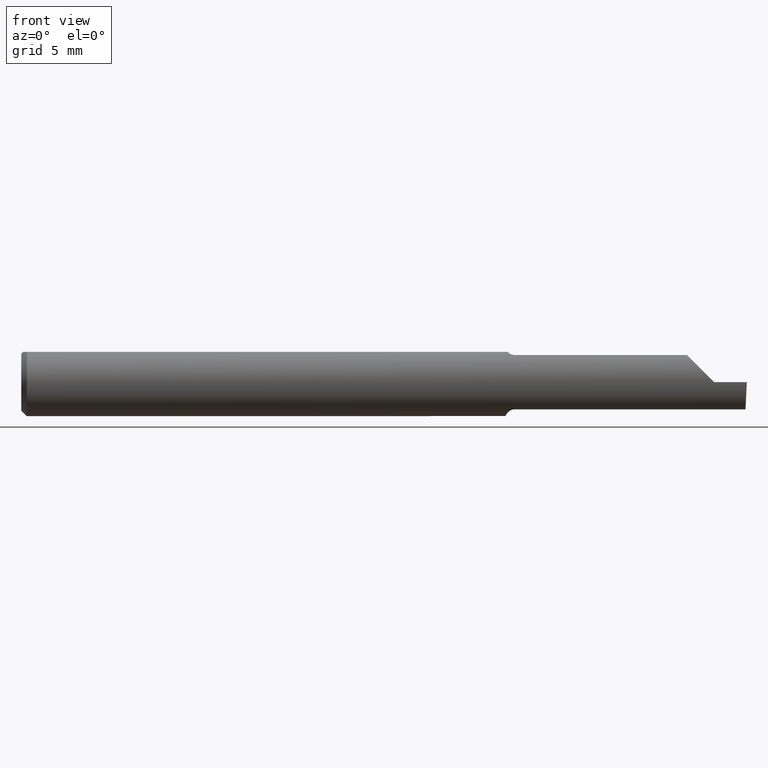
[diagram: clean part render]
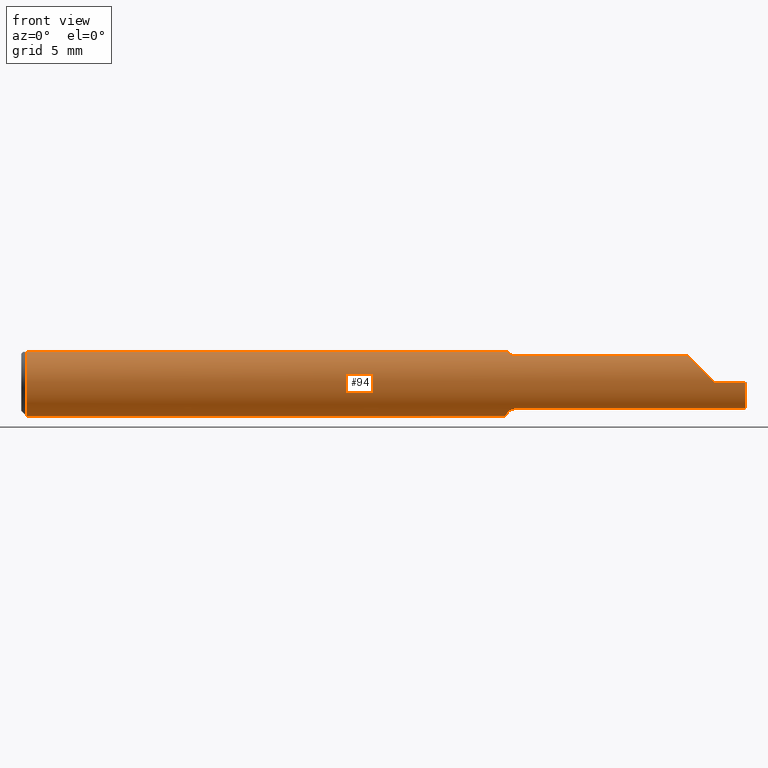
[diagram: same view with one face highlighted and labeled with its STEP entity id]
A machine part, front view. The second image highlights one B-rep face of the part: STEP entity #94.
In plain terms, the highlighted cylindrical surface (edge-blend (fillet) strip) has radius 2.3774 mm, axis along (-1, -0, -0).
Its self-contained STEP definition (entity closure, byte-faithful):
#3 = VERTEX_POINT ( 'NONE', #550 ) ;
#4 = VECTOR ( 'NONE', #466, 39.37007874015748143 ) ;
#7 = EDGE_CURVE ( 'NONE', #507, #112, #250, .T. ) ;
#26 = EDGE_CURVE ( 'NONE', #243, #507, #665, .T. ) ;
#27 = VERTEX_POINT ( 'NONE', #77 ) ;
#30 = CARTESIAN_POINT ( 'NONE',  ( 1.995561922431088098, -0.08091355869144019330, -0.05531953381055033925 ) ) ;
#33 = CARTESIAN_POINT ( 'NONE',  ( 0.01499999999999999944, -0.04209513035969836975, 0.08359999999999999376 ) ) ;
#34 = CARTESIAN_POINT ( 'NONE',  ( 1.996026586675631709, -0.09358669535931163352, -0.02913391928411206838 ) ) ;
#36 = CARTESIAN_POINT ( 'NONE',  ( 1.854690286057537829, -0.08092595952420826577, 0.05530971394246238237 ) ) ;
#45 = CARTESIAN_POINT ( 'NONE',  ( 1.355389214148234434, -0.05750155061631038317, 0.07386444488392700236 ) ) ;
#47 = CARTESIAN_POINT ( 'NONE',  ( 1.334999999999999520, -0.01308640439514264717, -0.09289765197734373148 ) ) ;
#48 =( BOUNDED_CURVE ( )  B_SPLINE_CURVE ( 3, ( #398, #626, #36, #683 ),
 .UNSPECIFIED., .F., .F. ) 
 B_SPLINE_CURVE_WITH_KNOTS ( ( 4, 4 ),
 ( 4.712388980384689674, 5.613420356061718408 ),
 .UNSPECIFIED. ) 
 CURVE ( )  GEOMETRIC_REPRESENTATION_ITEM ( )  RATIONAL_B_SPLINE_CURVE ( ( 1.000000000000000000, 0.9334817841311876530, 0.9334817841311876530, 1.000000000000000000 ) ) 
 REPRESENTATION_ITEM ( '' )  );
#49 = ORIENTED_EDGE ( 'NONE', *, *, #304, .F. ) ;
#51 = CARTESIAN_POINT ( 'NONE',  ( 1.338953896433695112, -0.03733827064844358334, -0.08603332211978831356 ) ) ;
#58 = B_SPLINE_CURVE_WITH_KNOTS ( 'NONE', 3,
 ( #390, #280, #449, #679, #148, #99, #684, #573 ),
 .UNSPECIFIED., .F., .F.,
 ( 4, 2, 2, 4 ),
 ( 1.968126669309311202E-07, 0.0001761966947278606531, 0.0003521965767887903819, 0.0007041963409106363411 ),
 .UNSPECIFIED. ) ;
#61 = CARTESIAN_POINT ( 'NONE',  ( 1.341356684838558300, -0.04259999999999997816, 0.08334386600104415344 ) ) ;
#69 = VECTOR ( 'NONE', #111, 39.37007874015748143 ) ;
#70 = CARTESIAN_POINT ( 'NONE',  ( 0.000000000000000000, 0.000000000000000000, 0.000000000000000000 ) ) ;
#72 = VECTOR ( 'NONE', #661, 39.37007874015748854 ) ;
#77 = CARTESIAN_POINT ( 'NONE',  ( 1.341356684838558300, -0.04259999999999997122, -0.08334386600104412568 ) ) ;
#81 = CYLINDRICAL_SURFACE ( 'NONE', #445, 0.09359999999999998876 ) ;
#94 = ADVANCED_FACE ( 'NONE', ( #380 ), #81, .T. ) ;
#99 = CARTESIAN_POINT ( 'NONE',  ( 1.345264545693809044, -0.04993027844100267343, -0.07924826417278510449 ) ) ;
#107 = CARTESIAN_POINT ( 'NONE',  ( 1.357655343791670077, -0.05810704225352126412, 0.07337936794867815082 ) ) ;
#111 = DIRECTION ( 'NONE',  ( -1.000000000000000000, -0.000000000000000000, -0.000000000000000000 ) ) ;
#112 = VERTEX_POINT ( 'NONE', #553 ) ;
#115 = CARTESIAN_POINT ( 'NONE',  ( 1.337415450430337494, -0.03151229630690470518, -0.08835846806355296401 ) ) ;
#122 = EDGE_LOOP ( 'NONE', ( #207, #535, #666, #427, #175, #734, #459, #475, #294, #395, #778, #255, #171, #551, #49 ) ) ;
#126 = CARTESIAN_POINT ( 'NONE',  ( 1.334999999999999742, -0.006757276995305157297, -0.09335576686851604356 ) ) ;
#141 = EDGE_CURVE ( 'NONE', #599, #574, #752, .T. ) ;
#148 = CARTESIAN_POINT ( 'NONE',  ( 1.349728336617689317, -0.05428341532129051655, -0.07627162539867091140 ) ) ;
#150 = CARTESIAN_POINT ( 'NONE',  ( 1.343098441794897902, -0.04641417426599061397, 0.08139430652501544738 ) ) ;
#160 = CARTESIAN_POINT ( 'NONE',  ( 1.359999999999999654, -0.05810704225352114616, 0.07337936794867824797 ) ) ;
#161 = EDGE_CURVE ( 'NONE', #240, #243, #652, .T. ) ;
#167 = CARTESIAN_POINT ( 'NONE',  ( 1.351469028275930739, -0.05559939362423893527, 0.07530665289274068863 ) ) ;
#168 = EDGE_CURVE ( 'NONE', #529, #388, #518, .T. ) ;
#171 = ORIENTED_EDGE ( 'NONE', *, *, #286, .F. ) ;
#174 = CARTESIAN_POINT ( 'NONE',  ( 1.335436655799338679, -0.01945041057485635827, -0.09177104786119411051 ) ) ;
#175 = ORIENTED_EDGE ( 'NONE', *, *, #141, .F. ) ;
#184 = CARTESIAN_POINT ( 'NONE',  ( 1.996789369178486595, -0.09359999999634724399, 1.727064904157919157E-17 ) ) ;
#207 = ORIENTED_EDGE ( 'NONE', *, *, #161, .T. ) ;
#211 = VERTEX_POINT ( 'NONE', #510 ) ;
#213 = DIRECTION ( 'NONE',  ( 1.000000000000000000, 0.000000000000000000, 0.000000000000000000 ) ) ;
#216 = AXIS2_PLACEMENT_3D ( 'NONE', #272, #514, #744 ) ;
#228 = EDGE_CURVE ( 'NONE', #211, #27, #58, .T. ) ;
#231 = CARTESIAN_POINT ( 'NONE',  ( 1.341356684838558300, -0.04259999999999997816, 0.08334386600104415344 ) ) ;
#240 = VERTEX_POINT ( 'NONE', #565 ) ;
#242 = CARTESIAN_POINT ( 'NONE',  ( 1.341280153739604630, -0.04243240890922536646, 0.08342952773968857760 ) ) ;
#243 = VERTEX_POINT ( 'NONE', #399 ) ;
#250 = LINE ( 'NONE', #544, #579 ) ;
#254 = DIRECTION ( 'NONE',  ( -1.000000000000000000, -0.000000000000000000, -0.000000000000000000 ) ) ;
#255 = ORIENTED_EDGE ( 'NONE', *, *, #168, .F. ) ;
#261 = AXIS2_PLACEMENT_3D ( 'NONE', #537, #292, #706 ) ;
#272 = CARTESIAN_POINT ( 'NONE',  ( 1.334999999999999742, 0.000000000000000000, 0.000000000000000000 ) ) ;
#280 = CARTESIAN_POINT ( 'NONE',  ( 1.357653034764491506, -0.05810704225352129881, -0.07337936794867813695 ) ) ;
#281 = EDGE_CURVE ( 'NONE', #378, #298, #284, .T. ) ;
#284 = B_SPLINE_CURVE_WITH_KNOTS ( 'NONE', 3,
 ( #776, #711, #242, #231 ),
 .UNSPECIFIED., .F., .F.,
 ( 4, 4 ),
 ( 4.741820243497488622E-07, 1.584523690453573094E-05 ),
 .UNSPECIFIED. ) ;
#286 = EDGE_CURVE ( 'NONE', #27, #529, #668, .T. ) ;
#287 = CARTESIAN_POINT ( 'NONE',  ( 1.996788249052547481, -0.09359999022555406945, -4.277588313357508156E-05 ) ) ;
#292 = DIRECTION ( 'NONE',  ( -1.000000000000000000, -0.000000000000000000, -0.000000000000000000 ) ) ;
#294 = ORIENTED_EDGE ( 'NONE', *, *, #561, .F. ) ;
#295 = AXIS2_PLACEMENT_3D ( 'NONE', #575, #617, #621 ) ;
#298 = VERTEX_POINT ( 'NONE', #61 ) ;
#301 = CARTESIAN_POINT ( 'NONE',  ( 1.334999999999999742, -0.006757276995305157297, -0.09335576686851604356 ) ) ;
#304 = EDGE_CURVE ( 'NONE', #240, #211, #357, .T. ) ;
#311 = DIRECTION ( 'NONE',  ( 0.000000000000000000, 0.000000000000000000, 1.000000000000000000 ) ) ;
#320 = DIRECTION ( 'NONE',  ( -1.000000000000000000, -0.000000000000000000, -0.000000000000000000 ) ) ;
#322 = CARTESIAN_POINT ( 'NONE',  ( 1.994172072281005459, -0.09355431490906530867, -0.09996576130738767108 ) ) ;
#325 = LINE ( 'NONE', #636, #69 ) ;
#328 = CARTESIAN_POINT ( 'NONE',  ( 1.664749999999999730, -0.05810704225352112534, 0.07337936794867826185 ) ) ;
#337 = CARTESIAN_POINT ( 'NONE',  ( 1.341129652885479029, -0.04209513035970091632, 0.08359999999999999376 ) ) ;
#350 = DIRECTION ( 'NONE',  ( -1.000000000000000000, -0.000000000000000000, -0.000000000000000000 ) ) ;
#357 = LINE ( 'NONE', #538, #457 ) ;
#378 = VERTEX_POINT ( 'NONE', #337 ) ;
#380 = FACE_OUTER_BOUND ( 'NONE', #122, .T. ) ;
#388 = VERTEX_POINT ( 'NONE', #526 ) ;
#390 = CARTESIAN_POINT ( 'NONE',  ( 1.359999999999999654, -0.05810704225352111146, -0.07337936794867826185 ) ) ;
#393 = CARTESIAN_POINT ( 'NONE',  ( 0.000000000000000000, -0.04209513035969836975, 0.08359999999999999376 ) ) ;
#395 = ORIENTED_EDGE ( 'NONE', *, *, #412, .F. ) ;
#398 = CARTESIAN_POINT ( 'NONE',  ( 1.910000000000000142, -0.09359999999999998876, 1.102182119232621301E-17 ) ) ;
#399 = CARTESIAN_POINT ( 'NONE',  ( 1.996788249052547481, -0.09359999022555406945, -4.277588313357508156E-05 ) ) ;
#402 = CARTESIAN_POINT ( 'NONE',  ( 1.341356684838558300, -0.04259999999999997816, 0.08334386600104415344 ) ) ;
#408 = CARTESIAN_POINT ( 'NONE',  ( 1.359999999999999654, -0.05810704225352114616, 0.07337936794867824797 ) ) ;
#412 = EDGE_CURVE ( 'NONE', #515, #3, #662, .T. ) ;
#423 = EDGE_CURVE ( 'NONE', #112, #574, #48, .T. ) ;
#427 = ORIENTED_EDGE ( 'NONE', *, *, #423, .T. ) ;
#428 = EDGE_CURVE ( 'NONE', #471, #378, #521, .T. ) ;
#433 = CIRCLE ( 'NONE', #261, 0.09359999999999998876 ) ;
#445 = AXIS2_PLACEMENT_3D ( 'NONE', #70, #320, #311 ) ;
#449 = CARTESIAN_POINT ( 'NONE',  ( 1.355389671955115727, -0.05750350940205801314, -0.07386306649500064270 ) ) ;
#457 = VECTOR ( 'NONE', #350, 39.37007874015748143 ) ;
#459 = ORIENTED_EDGE ( 'NONE', *, *, #281, .F. ) ;
#466 = DIRECTION ( 'NONE',  ( 1.000000000000000000, 0.000000000000000000, 0.000000000000000000 ) ) ;
#471 = VERTEX_POINT ( 'NONE', #33 ) ;
#475 = ORIENTED_EDGE ( 'NONE', *, *, #428, .F. ) ;
#479 = EDGE_CURVE ( 'NONE', #298, #599, #770, .T. ) ;
#486 = EDGE_CURVE ( 'NONE', #388, #515, #325, .T. ) ;
#489 = CARTESIAN_POINT ( 'NONE',  ( 0.01499999999999999598, 0.04209513035969836975, 0.08359999999999999376 ) ) ;
#507 = VERTEX_POINT ( 'NONE', #184 ) ;
#510 = CARTESIAN_POINT ( 'NONE',  ( 1.359999999999999654, -0.05810704225352111146, -0.07337936794867826185 ) ) ;
#514 = DIRECTION ( 'NONE',  ( 1.000000000000000000, 0.000000000000000000, 0.000000000000000000 ) ) ;
#515 = VERTEX_POINT ( 'NONE', #489 ) ;
#518 = CIRCLE ( 'NONE', #216, 0.09359999999999998876 ) ;
#521 = LINE ( 'NONE', #393, #729 ) ;
#526 = CARTESIAN_POINT ( 'NONE',  ( 1.334999999999999742, 0.04209513035969834893, 0.08359999999999999376 ) ) ;
#529 = VERTEX_POINT ( 'NONE', #126 ) ;
#535 = ORIENTED_EDGE ( 'NONE', *, *, #26, .T. ) ;
#537 = CARTESIAN_POINT ( 'NONE',  ( 0.01499999999999999944, 0.000000000000000000, 0.000000000000000000 ) ) ;
#538 = CARTESIAN_POINT ( 'NONE',  ( 1.664749999999999730, -0.05810704225352112534, -0.07337936794867826185 ) ) ;
#544 = CARTESIAN_POINT ( 'NONE',  ( 2.999519565323743132E-32, -0.09359999999999998876, 2.449293598294717754E-16 ) ) ;
#550 = CARTESIAN_POINT ( 'NONE',  ( 0.01499999999999999944, 0.000000000000000000, -0.09359999999999998876 ) ) ;
#551 = ORIENTED_EDGE ( 'NONE', *, *, #228, .F. ) ;
#553 = CARTESIAN_POINT ( 'NONE',  ( 1.910000000000000142, -0.09359999999999998876, 1.102182119232621301E-17 ) ) ;
#561 = EDGE_CURVE ( 'NONE', #3, #471, #433, .T. ) ;
#565 = CARTESIAN_POINT ( 'NONE',  ( 1.995486889784650497, -0.05810704225352112534, -0.07337936794867826185 ) ) ;
#573 = CARTESIAN_POINT ( 'NONE',  ( 1.341356684838558300, -0.04259999999999997122, -0.08334386600104412568 ) ) ;
#574 = VERTEX_POINT ( 'NONE', #779 ) ;
#575 = CARTESIAN_POINT ( 'NONE',  ( 0.01499999999999999944, 0.000000000000000000, 0.000000000000000000 ) ) ;
#579 = VECTOR ( 'NONE', #254, 39.37007874015748143 ) ;
#595 = CARTESIAN_POINT ( 'NONE',  ( 1.341356684838558300, -0.04259999999999997122, -0.08334386600104412568 ) ) ;
#599 = VERTEX_POINT ( 'NONE', #408 ) ;
#617 = DIRECTION ( 'NONE',  ( -1.000000000000000000, -0.000000000000000000, -0.000000000000000000 ) ) ;
#618 = CARTESIAN_POINT ( 'NONE',  ( 1.995486889784650497, -0.05810704225352112534, -0.07337936794867826185 ) ) ;
#621 = DIRECTION ( 'NONE',  ( 0.000000000000000000, 0.000000000000000000, 1.000000000000000000 ) ) ;
#626 = CARTESIAN_POINT ( 'NONE',  ( 1.880893035518783396, -0.09359999999999998876, 0.02910696448121675300 ) ) ;
#631 = CARTESIAN_POINT ( 'NONE',  ( 1.349746577633803790, -0.05429945193459818215, 0.07626038032150796175 ) ) ;
#636 = CARTESIAN_POINT ( 'NONE',  ( 0.000000000000000000, 0.04209513035969836975, 0.08359999999999999376 ) ) ;
#652 =( BOUNDED_CURVE ( )  B_SPLINE_CURVE ( 3, ( #618, #30, #34, #287 ),
 .UNSPECIFIED., .F., .F. ) 
 B_SPLINE_CURVE_WITH_KNOTS ( ( 4, 4 ),
 ( 0.08204942185700578317, 0.9826237902196912621 ),
 .UNSPECIFIED. ) 
 CURVE ( )  GEOMETRIC_REPRESENTATION_ITEM ( )  RATIONAL_B_SPLINE_CURVE ( ( 1.000000000000000000, 0.9335481000009943076, 0.9335481000009943076, 1.000000000000000000 ) ) 
 REPRESENTATION_ITEM ( '' )  );
#661 = DIRECTION ( 'NONE',  ( 0.02617296143184116158, -0.0004568507411563392279, 0.9996573249755575929 ) ) ;
#662 = CIRCLE ( 'NONE', #295, 0.09359999999999998876 ) ;
#665 = LINE ( 'NONE', #322, #72 ) ;
#666 = ORIENTED_EDGE ( 'NONE', *, *, #7, .T. ) ;
#668 = B_SPLINE_CURVE_WITH_KNOTS ( 'NONE', 3,
 ( #595, #51, #115, #174, #47, #301 ),
 .UNSPECIFIED., .F., .F.,
 ( 4, 2, 4 ),
 ( 0.0007041963409106363411, 0.001193146413573859584, 0.001682096486237082827 ),
 .UNSPECIFIED. ) ;
#679 = CARTESIAN_POINT ( 'NONE',  ( 1.351446782524423629, -0.05558685324519236498, -0.07531605361338913895 ) ) ;
#683 = CARTESIAN_POINT ( 'NONE',  ( 1.836620632051322310, -0.05810704225352113922, 0.07337936794867826185 ) ) ;
#684 = CARTESIAN_POINT ( 'NONE',  ( 1.343086474849917833, -0.04638796853538176834, -0.08140770120152256151 ) ) ;
#706 = DIRECTION ( 'NONE',  ( 0.000000000000000000, 0.000000000000000000, 1.000000000000000000 ) ) ;
#711 = CARTESIAN_POINT ( 'NONE',  ( 1.341204482410373933, -0.04226411763296329671, 0.08351490979309549034 ) ) ;
#729 = VECTOR ( 'NONE', #213, 39.37007874015748143 ) ;
#734 = ORIENTED_EDGE ( 'NONE', *, *, #479, .F. ) ;
#744 = DIRECTION ( 'NONE',  ( 0.000000000000000000, 0.000000000000000000, -1.000000000000000000 ) ) ;
#751 = CARTESIAN_POINT ( 'NONE',  ( 1.345259025420519006, -0.04992838138009422083, 0.07925011723318650669 ) ) ;
#752 = LINE ( 'NONE', #328, #4 ) ;
#770 = B_SPLINE_CURVE_WITH_KNOTS ( 'NONE', 3,
 ( #402, #150, #751, #631, #167, #45, #107, #160 ),
 .UNSPECIFIED., .F., .F.,
 ( 4, 2, 2, 4 ),
 ( 1.584523690453573094E-05, 0.0003656721978374879740, 0.0005405856783039572752, 0.0007154991587704265764 ),
 .UNSPECIFIED. ) ;
#776 = CARTESIAN_POINT ( 'NONE',  ( 1.341129652885479029, -0.04209513035970091632, 0.08359999999999999376 ) ) ;
#778 = ORIENTED_EDGE ( 'NONE', *, *, #486, .F. ) ;
#779 = CARTESIAN_POINT ( 'NONE',  ( 1.836620632051322310, -0.05810704225352113922, 0.07337936794867826185 ) ) ;